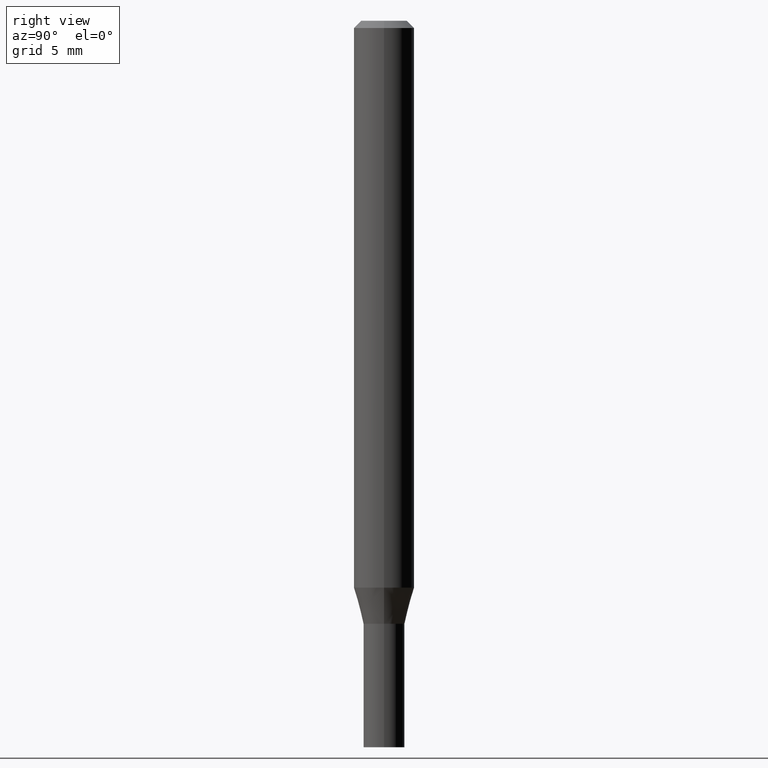
[diagram: clean part render]
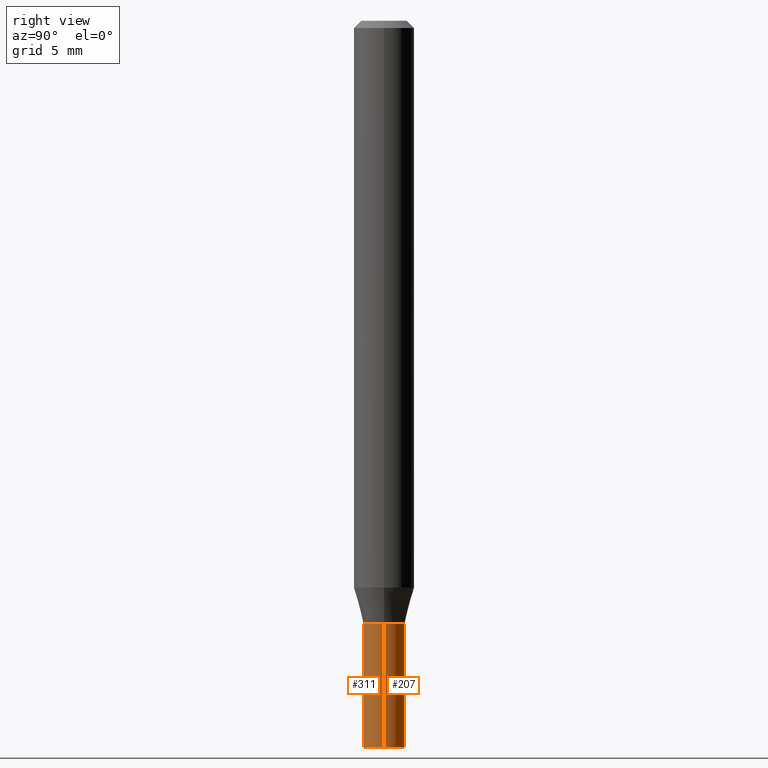
[diagram: same view with one multi-face feature highlighted, each face labeled with its STEP entity id]
A machine part, right view. The highlighted faces form ONE feature: a constant-radius fillet chain: 2 tangent blend faces with common blend radius 1.0795 mm. The faces share edges in the B-rep.
Their STEP definitions:
[1] entity #311 (Cylinder):
#6 = ORIENTED_EDGE ( 'NONE', *, *, #369, .T. ) ;
#19 = VERTEX_POINT ( 'NONE', #262 ) ;
#30 = VERTEX_POINT ( 'NONE', #140 ) ;
#44 = CIRCLE ( 'NONE', #393, 0.04249999999999999611 ) ;
#50 = DIRECTION ( 'NONE',  ( -2.445468806185136877E-29, 3.491481338843145188E-15, 1.000000000000000000 ) ) ;
#64 = CARTESIAN_POINT ( 'NONE',  ( -0.04249999999999999611, -4.490077474864174959E-15, -1.245000000000000329 ) ) ;
#66 = CIRCLE ( 'NONE', #175, 0.04249999999999999611 ) ;
#73 = DIRECTION ( 'NONE',  ( -2.445468806185136597E-29, 3.491481338843145583E-15, 1.000000000000000000 ) ) ;
#86 = DIRECTION ( 'NONE',  ( -2.445468806185136877E-29, 3.491481338843145188E-15, 1.000000000000000000 ) ) ;
#95 = DIRECTION ( 'NONE',  ( 1.000000000000000000, -6.982962677686276177E-15, 0.000000000000000000 ) ) ;
#100 = ORIENTED_EDGE ( 'NONE', *, *, #428, .T. ) ;
#116 = VERTEX_POINT ( 'NONE', #64 ) ;
#131 = CARTESIAN_POINT ( 'NONE',  ( 0.000000000000000000, 0.000000000000000000, 0.000000000000000000 ) ) ;
#140 = CARTESIAN_POINT ( 'NONE',  ( 0.04249999999999999611, -5.533997922066385616E-15, -1.500000000000000222 ) ) ;
#141 = EDGE_CURVE ( 'NONE', #116, #19, #44, .T. ) ;
#145 = VERTEX_POINT ( 'NONE', #279 ) ;
#146 = VECTOR ( 'NONE', #86, 39.37007874015748143 ) ;
#162 = LINE ( 'NONE', #218, #413 ) ;
#175 = AXIS2_PLACEMENT_3D ( 'NONE', #193, #406, #95 ) ;
#188 = EDGE_LOOP ( 'NONE', ( #435, #100, #6, #314 ) ) ;
#193 = CARTESIAN_POINT ( 'NONE',  ( 3.668203209277704895E-29, -5.237222008264718177E-15, -1.500000000000000222 ) ) ;
#218 = CARTESIAN_POINT ( 'NONE',  ( -0.04249999999999999611, 3.019806626980425514E-16, -2.090547413358334859E-30 ) ) ;
#227 = DIRECTION ( 'NONE',  ( 1.000000000000000000, -6.982962677686267499E-15, 4.876176775795935793E-29 ) ) ;
#242 = AXIS2_PLACEMENT_3D ( 'NONE', #131, #334, #227 ) ;
#252 = LINE ( 'NONE', #365, #146 ) ;
#257 = DIRECTION ( 'NONE',  ( 1.000000000000000000, -6.982962677686265133E-15, 0.000000000000000000 ) ) ;
#262 = CARTESIAN_POINT ( 'NONE',  ( 0.04249999999999999611, -4.643670180661383298E-15, -1.245000000000000329 ) ) ;
#279 = CARTESIAN_POINT ( 'NONE',  ( -0.04249999999999999611, -4.490077474864174959E-15, -1.500000000000000222 ) ) ;
#289 = CARTESIAN_POINT ( 'NONE',  ( 3.044608663700495534E-29, -4.346894266859716647E-15, -1.245000000000000329 ) ) ;
#311 = ADVANCED_FACE ( 'NONE', ( #330 ), #372, .T. ) ;
#314 = ORIENTED_EDGE ( 'NONE', *, *, #141, .F. ) ;
#330 = FACE_OUTER_BOUND ( 'NONE', #188, .T. ) ;
#334 = DIRECTION ( 'NONE',  ( -2.445468806185136597E-29, 3.491481338843145583E-15, 1.000000000000000000 ) ) ;
#335 = EDGE_CURVE ( 'NONE', #145, #116, #162, .T. ) ;
#365 = CARTESIAN_POINT ( 'NONE',  ( 0.04249999999999999611, -2.967759138016663549E-16, 2.072375129713272502E-30 ) ) ;
#369 = EDGE_CURVE ( 'NONE', #30, #19, #252, .T. ) ;
#372 = CYLINDRICAL_SURFACE ( 'NONE', #242, 0.04249999999999999611 ) ;
#393 = AXIS2_PLACEMENT_3D ( 'NONE', #289, #73, #257 ) ;
#406 = DIRECTION ( 'NONE',  ( -2.445468806185136597E-29, 3.491481338843145583E-15, 1.000000000000000000 ) ) ;
#413 = VECTOR ( 'NONE', #50, 39.37007874015748143 ) ;
#428 = EDGE_CURVE ( 'NONE', #145, #30, #66, .T. ) ;
#435 = ORIENTED_EDGE ( 'NONE', *, *, #335, .F. ) ;
[2] entity #207 (Cylinder):
#5 = CARTESIAN_POINT ( 'NONE',  ( 3.044608663700495534E-29, -4.346894266859716647E-15, -1.245000000000000329 ) ) ;
#19 = VERTEX_POINT ( 'NONE', #262 ) ;
#30 = VERTEX_POINT ( 'NONE', #140 ) ;
#49 = DIRECTION ( 'NONE',  ( -2.445468806185136597E-29, 3.491481338843145583E-15, 1.000000000000000000 ) ) ;
#50 = DIRECTION ( 'NONE',  ( -2.445468806185136877E-29, 3.491481338843145188E-15, 1.000000000000000000 ) ) ;
#51 = DIRECTION ( 'NONE',  ( 1.000000000000000000, -6.982962677686276177E-15, 0.000000000000000000 ) ) ;
#53 = DIRECTION ( 'NONE',  ( 1.000000000000000000, -6.982962677686267499E-15, 4.876176775795935793E-29 ) ) ;
#64 = CARTESIAN_POINT ( 'NONE',  ( -0.04249999999999999611, -4.490077474864174959E-15, -1.245000000000000329 ) ) ;
#74 = ORIENTED_EDGE ( 'NONE', *, *, #244, .F. ) ;
#86 = DIRECTION ( 'NONE',  ( -2.445468806185136877E-29, 3.491481338843145188E-15, 1.000000000000000000 ) ) ;
#91 = CYLINDRICAL_SURFACE ( 'NONE', #276, 0.04249999999999999611 ) ;
#116 = VERTEX_POINT ( 'NONE', #64 ) ;
#140 = CARTESIAN_POINT ( 'NONE',  ( 0.04249999999999999611, -5.533997922066385616E-15, -1.500000000000000222 ) ) ;
#145 = VERTEX_POINT ( 'NONE', #279 ) ;
#146 = VECTOR ( 'NONE', #86, 39.37007874015748143 ) ;
#148 = EDGE_CURVE ( 'NONE', #30, #145, #375, .T. ) ;
#153 = AXIS2_PLACEMENT_3D ( 'NONE', #5, #49, #197 ) ;
#162 = LINE ( 'NONE', #218, #413 ) ;
#197 = DIRECTION ( 'NONE',  ( 1.000000000000000000, -6.982962677686265133E-15, 0.000000000000000000 ) ) ;
#207 = ADVANCED_FACE ( 'NONE', ( #403 ), #91, .T. ) ;
#209 = CARTESIAN_POINT ( 'NONE',  ( 3.668203209277704895E-29, -5.237222008264718177E-15, -1.500000000000000222 ) ) ;
#212 = EDGE_LOOP ( 'NONE', ( #338, #434, #74, #348 ) ) ;
#218 = CARTESIAN_POINT ( 'NONE',  ( -0.04249999999999999611, 3.019806626980425514E-16, -2.090547413358334859E-30 ) ) ;
#224 = DIRECTION ( 'NONE',  ( -2.445468806185136597E-29, 3.491481338843145583E-15, 1.000000000000000000 ) ) ;
#236 = DIRECTION ( 'NONE',  ( -2.445468806185136597E-29, 3.491481338843145583E-15, 1.000000000000000000 ) ) ;
#244 = EDGE_CURVE ( 'NONE', #19, #116, #251, .T. ) ;
#248 = AXIS2_PLACEMENT_3D ( 'NONE', #209, #236, #51 ) ;
#251 = CIRCLE ( 'NONE', #153, 0.04249999999999999611 ) ;
#252 = LINE ( 'NONE', #365, #146 ) ;
#262 = CARTESIAN_POINT ( 'NONE',  ( 0.04249999999999999611, -4.643670180661383298E-15, -1.245000000000000329 ) ) ;
#276 = AXIS2_PLACEMENT_3D ( 'NONE', #452, #224, #53 ) ;
#279 = CARTESIAN_POINT ( 'NONE',  ( -0.04249999999999999611, -4.490077474864174959E-15, -1.500000000000000222 ) ) ;
#335 = EDGE_CURVE ( 'NONE', #145, #116, #162, .T. ) ;
#338 = ORIENTED_EDGE ( 'NONE', *, *, #148, .T. ) ;
#348 = ORIENTED_EDGE ( 'NONE', *, *, #369, .F. ) ;
#365 = CARTESIAN_POINT ( 'NONE',  ( 0.04249999999999999611, -2.967759138016663549E-16, 2.072375129713272502E-30 ) ) ;
#369 = EDGE_CURVE ( 'NONE', #30, #19, #252, .T. ) ;
#375 = CIRCLE ( 'NONE', #248, 0.04249999999999999611 ) ;
#403 = FACE_OUTER_BOUND ( 'NONE', #212, .T. ) ;
#413 = VECTOR ( 'NONE', #50, 39.37007874015748143 ) ;
#434 = ORIENTED_EDGE ( 'NONE', *, *, #335, .T. ) ;
#452 = CARTESIAN_POINT ( 'NONE',  ( 0.000000000000000000, 0.000000000000000000, 0.000000000000000000 ) ) ;